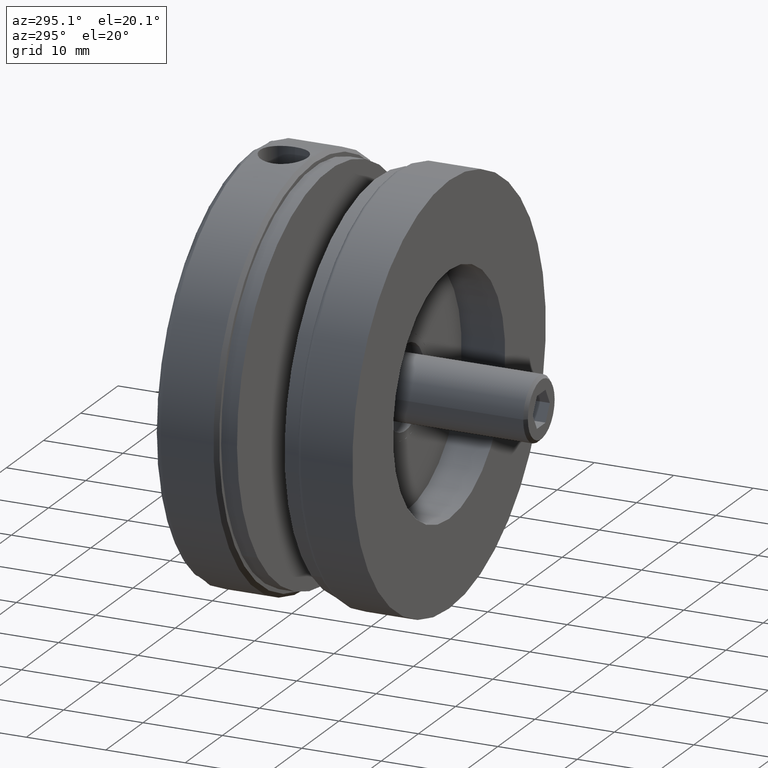
[diagram: clean part render]
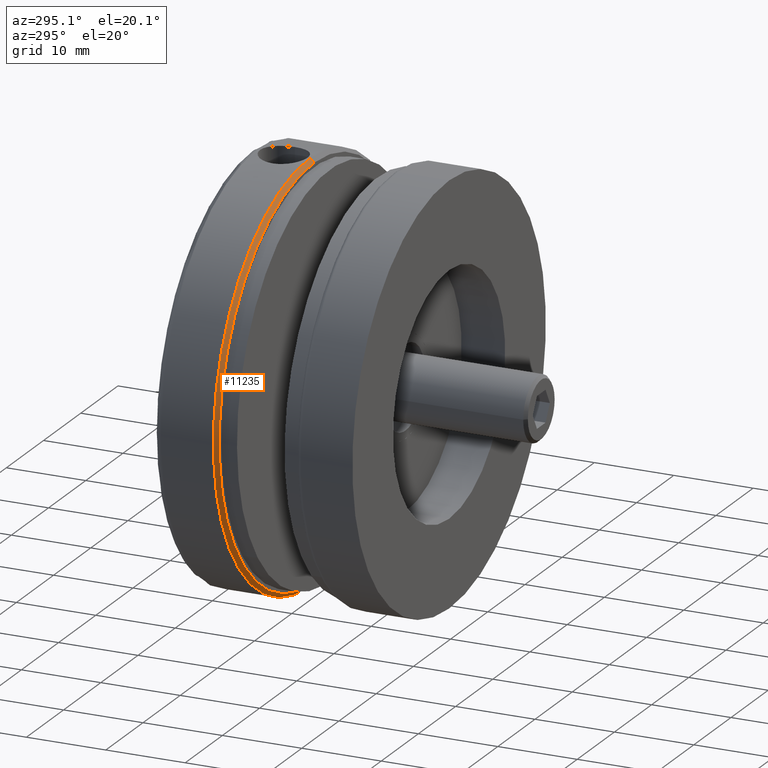
[diagram: same view with one face highlighted and labeled with its STEP entity id]
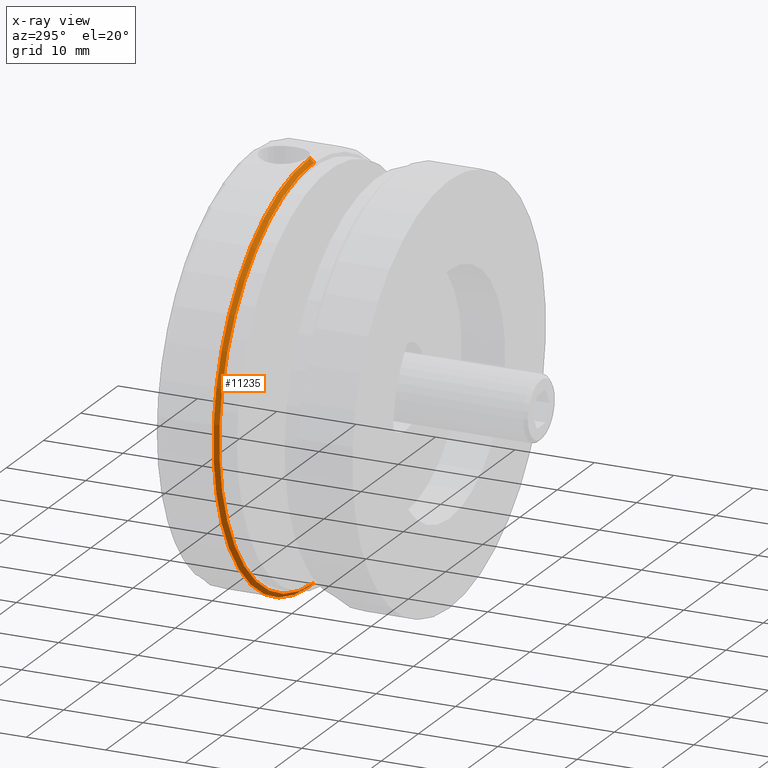
[diagram: x-ray of the same camera — body ghosted, the highlighted face saturated]
A machine part, auxiliary view. The second image highlights one B-rep face of the part: STEP entity #11235.
The next image is the same camera in x-ray: the body ghosted, the highlighted face saturated — about 0% of this face is hidden behind the body in this view.
In plain terms, the highlighted conical surface has half-angle 45 deg.
Its self-contained STEP definition (entity closure, byte-faithful):
#487 = VERTEX_POINT ( 'NONE', #9756 ) ;
#793 = CARTESIAN_POINT ( 'NONE',  ( 26.00000000000000400, 0.0000000000000000000, -25.50000000000000000 ) ) ;
#815 = CARTESIAN_POINT ( 'NONE',  ( 26.00000000000000400, 0.0000000000000000000, -25.50000000000000000 ) ) ;
#1458 = CARTESIAN_POINT ( 'NONE',  ( 26.00000000000000000, 0.5000000000000108800, -26.00000000000000000 ) ) ;
#1887 = EDGE_CURVE ( 'NONE', #10574, #10303, #3002, .T. ) ;
#3002 = LINE ( 'NONE', #815, #6555 ) ;
#3529 = CARTESIAN_POINT ( 'NONE',  ( 26.00000000000000000, 0.0000000000000000000, 0.0000000000000000000 ) ) ;
#3944 = AXIS2_PLACEMENT_3D ( 'NONE', #3529, #11377, #9152 ) ;
#4514 = VERTEX_POINT ( 'NONE', #11495 ) ;
#4927 = ORIENTED_EDGE ( 'NONE', *, *, #11816, .F. ) ;
#5322 = EDGE_LOOP ( 'NONE', ( #5399, #4927, #6077, #12765 ) ) ;
#5399 = ORIENTED_EDGE ( 'NONE', *, *, #1887, .F. ) ;
#5485 = DIRECTION ( 'NONE',  ( 8.659560562354842900E-017, 0.7071067811865549000, -0.7071067811865401300 ) ) ;
#5569 = AXIS2_PLACEMENT_3D ( 'NONE', #13992, #13840, #13937 ) ;
#6077 = ORIENTED_EDGE ( 'NONE', *, *, #7450, .T. ) ;
#6356 = CARTESIAN_POINT ( 'NONE',  ( 26.00000000000000000, 0.0000000000000000000, 25.50000000000000000 ) ) ;
#6555 = VECTOR ( 'NONE', #5485, 1000.000000000000000 ) ;
#7177 = LINE ( 'NONE', #6356, #10916 ) ;
#7320 = DIRECTION ( 'NONE',  ( 0.0000000000000000000, 0.7071067811865549000, 0.7071067811865401300 ) ) ;
#7450 = EDGE_CURVE ( 'NONE', #4514, #487, #7177, .T. ) ;
#8203 = CIRCLE ( 'NONE', #14043, 26.00000000000000000 ) ;
#9135 = EDGE_CURVE ( 'NONE', #10303, #487, #8203, .T. ) ;
#9152 = DIRECTION ( 'NONE',  ( 0.0000000000000000000, 0.0000000000000000000, 1.000000000000000000 ) ) ;
#9756 = CARTESIAN_POINT ( 'NONE',  ( 26.00000000000000400, 0.5000000000000108800, 26.00000000000000000 ) ) ;
#9991 = CARTESIAN_POINT ( 'NONE',  ( 26.00000000000000000, 0.5000000000000108800, 0.0000000000000000000 ) ) ;
#10303 = VERTEX_POINT ( 'NONE', #1458 ) ;
#10311 = FACE_OUTER_BOUND ( 'NONE', #5322, .T. ) ;
#10574 = VERTEX_POINT ( 'NONE', #793 ) ;
#10916 = VECTOR ( 'NONE', #7320, 1000.000000000000000 ) ;
#11030 = CONICAL_SURFACE ( 'NONE', #5569, 25.50000000000000000, 0.7853981633974378400 ) ;
#11103 = DIRECTION ( 'NONE',  ( 0.0000000000000000000, 1.000000000000000000, 0.0000000000000000000 ) ) ;
#11207 = CIRCLE ( 'NONE', #3944, 25.50000000000000000 ) ;
#11235 = ADVANCED_FACE ( 'NONE', ( #10311 ), #11030, .T. ) ;
#11308 = DIRECTION ( 'NONE',  ( 0.0000000000000000000, 0.0000000000000000000, 1.000000000000000000 ) ) ;
#11377 = DIRECTION ( 'NONE',  ( -0.0000000000000000000, -1.000000000000000000, -0.0000000000000000000 ) ) ;
#11495 = CARTESIAN_POINT ( 'NONE',  ( 26.00000000000000000, 0.0000000000000000000, 25.50000000000000000 ) ) ;
#11816 = EDGE_CURVE ( 'NONE', #4514, #10574, #11207, .T. ) ;
#12765 = ORIENTED_EDGE ( 'NONE', *, *, #9135, .F. ) ;
#13840 = DIRECTION ( 'NONE',  ( 0.0000000000000000000, 1.000000000000000000, 0.0000000000000000000 ) ) ;
#13937 = DIRECTION ( 'NONE',  ( 0.0000000000000000000, 0.0000000000000000000, 1.000000000000000000 ) ) ;
#13992 = CARTESIAN_POINT ( 'NONE',  ( 26.00000000000000000, 0.0000000000000000000, 0.0000000000000000000 ) ) ;
#14043 = AXIS2_PLACEMENT_3D ( 'NONE', #9991, #11103, #11308 ) ;